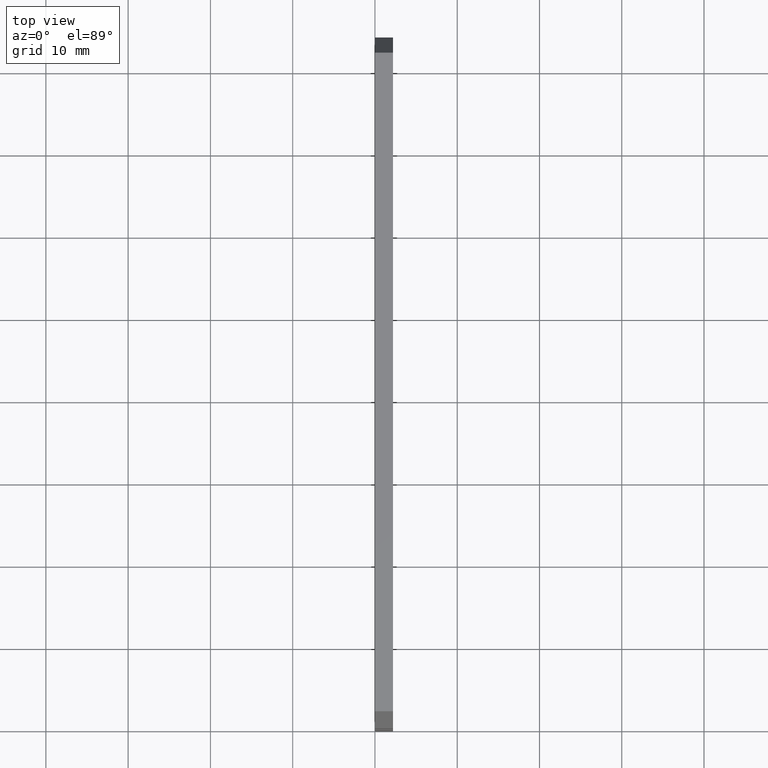
[diagram: clean part render]
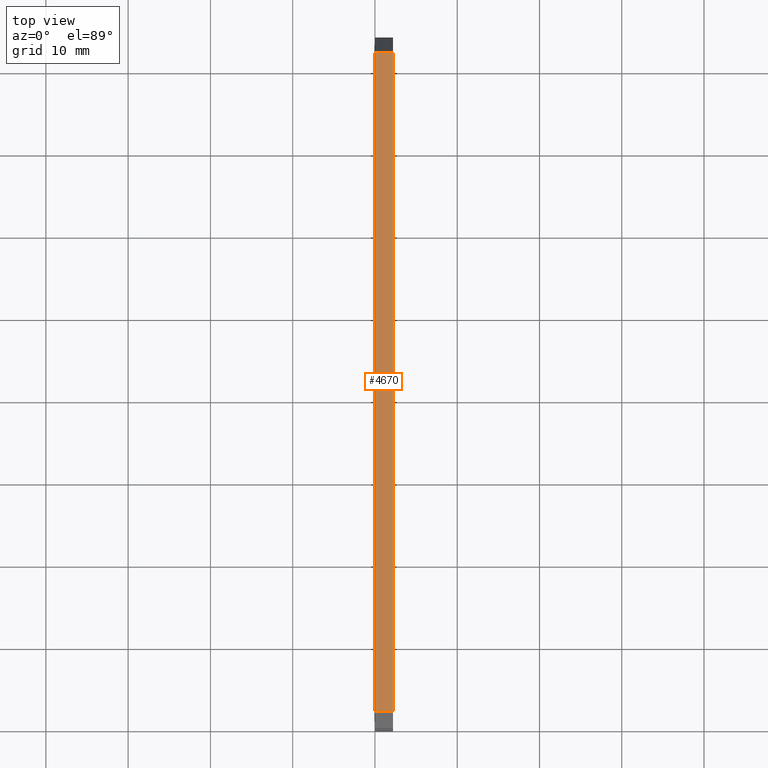
[diagram: same view with one face highlighted and labeled with its STEP entity id]
A machine part, top view. The second image highlights one B-rep face of the part: STEP entity #4670.
In plain terms, the highlighted planar face has unit normal (-0, 0, 1).
Its self-contained STEP definition (entity closure, byte-faithful):
#1910=CARTESIAN_POINT('',(-32.2076385489778,-9.15000000000162,55.37));
#1920=VERTEX_POINT('',#1910);
#1950=CARTESIAN_POINT('',(11.4461541156283,-9.15000000000162,55.37));
#1960=DIRECTION('',(-1.,0.,0.));
#1970=VECTOR('',#1960,1.);
#1980=LINE('',#1950,#1970);
#1990=CARTESIAN_POINT('',(47.8719729923293,-9.15000000000162,55.37));
#2000=VERTEX_POINT('',#1990);
#2010=EDGE_CURVE('',#2000,#1920,#1980,.T.);
#2250=CARTESIAN_POINT('',(47.8719729923293,-9.15000000000162,53.17));
#2260=DIRECTION('',(0.,0.,1.));
#2270=VECTOR('',#2260,1.);
#2280=LINE('',#2250,#2270);
#2290=CARTESIAN_POINT('',(47.8719729923293,-9.15000000000162,53.17));
#2300=VERTEX_POINT('',#2290);
#2310=EDGE_CURVE('',#2300,#2000,#2280,.T.);
#2580=CARTESIAN_POINT('',(11.4461541156283,-9.15000000000162,53.17));
#2590=DIRECTION('',(-1.,0.,0.));
#2600=VECTOR('',#2590,1.);
#2610=LINE('',#2580,#2600);
#2620=CARTESIAN_POINT('',(-32.2076385489778,-9.15000000000162,53.17));
#2630=VERTEX_POINT('',#2620);
#2640=EDGE_CURVE('',#2300,#2630,#2610,.T.);
#4380=CARTESIAN_POINT('',(-32.2076385489778,-9.15000000000162,53.17));
#4390=DIRECTION('',(0.,0.,1.));
#4400=VECTOR('',#4390,1.);
#4410=LINE('',#4380,#4400);
#4420=EDGE_CURVE('',#2630,#1920,#4410,.T.);
#4560=CARTESIAN_POINT('',(-5.33035950726473,-9.15000000000162,
54.9881177917553));
#4570=DIRECTION('',(0.,1.,-0.));
#4580=DIRECTION('',(-1.,0.,0.));
#4590=AXIS2_PLACEMENT_3D('',#4560,#4570,#4580);
#4600=PLANE('',#4590);
#4610=ORIENTED_EDGE('',*,*,#2010,.F.);
#4620=ORIENTED_EDGE('',*,*,#4420,.T.);
#4630=ORIENTED_EDGE('',*,*,#2640,.T.);
#4640=ORIENTED_EDGE('',*,*,#2310,.F.);
#4650=EDGE_LOOP('',(#4640,#4630,#4620,#4610));
#4660=FACE_OUTER_BOUND('',#4650,.T.);
#4670=ADVANCED_FACE('',(#4660),#4600,.T.);